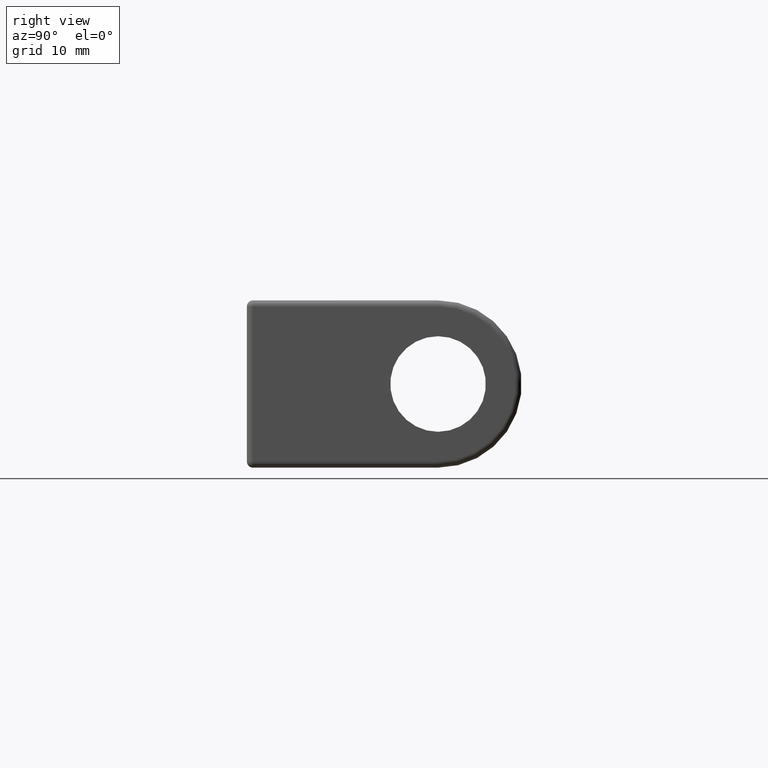
[diagram: clean part render]
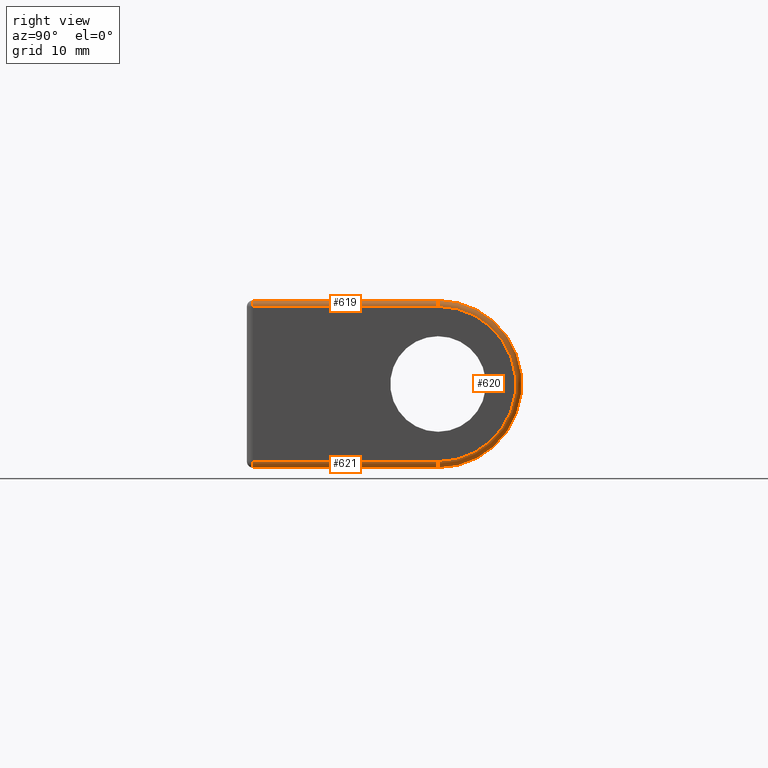
[diagram: same view with one multi-face feature highlighted, each face labeled with its STEP entity id]
A machine part, right view. The highlighted faces form ONE feature: a constant-radius fillet chain: 3 tangent blend faces with common blend radius 0.5 mm. The faces share edges in the B-rep.
Their STEP definitions:
[1] entity #620 (Torus):
#53=TOROIDAL_SURFACE('',#695,6.5,0.5);
#74=FACE_OUTER_BOUND('',#121,.T.);
#121=EDGE_LOOP('',(#492,#493,#494,#495));
#175=CIRCLE('',#668,7.);
#191=CIRCLE('',#694,0.499999999999998);
#192=CIRCLE('',#696,0.500000000000003);
#193=CIRCLE('',#697,6.5);
#295=VERTEX_POINT('',#1009);
#296=VERTEX_POINT('',#1011);
#313=VERTEX_POINT('',#1065);
#314=VERTEX_POINT('',#1069);
#356=EDGE_CURVE('',#296,#295,#175,.T.);
#383=EDGE_CURVE('',#313,#295,#191,.T.);
#385=EDGE_CURVE('',#314,#296,#192,.T.);
#386=EDGE_CURVE('',#313,#314,#193,.T.);
#492=ORIENTED_EDGE('',*,*,#385,.T.);
#493=ORIENTED_EDGE('',*,*,#356,.T.);
#494=ORIENTED_EDGE('',*,*,#383,.F.);
#495=ORIENTED_EDGE('',*,*,#386,.T.);
#620=ADVANCED_FACE('',(#74),#53,.T.);
#668=AXIS2_PLACEMENT_3D('',#1012,#796,#797);
#694=AXIS2_PLACEMENT_3D('',#1066,#859,#860);
#695=AXIS2_PLACEMENT_3D('',#1068,#862,#863);
#696=AXIS2_PLACEMENT_3D('',#1070,#864,#865);
#697=AXIS2_PLACEMENT_3D('',#1071,#866,#867);
#796=DIRECTION('center_axis',(1.,-1.93082265152201E-16,0.));
#797=DIRECTION('ref_axis',(1.88341405963196E-16,1.,6.12323399573677E-17));
#859=DIRECTION('center_axis',(0.,-1.,-1.66533453693773E-15));
#860=DIRECTION('ref_axis',(1.,0.,0.));
#862=DIRECTION('center_axis',(1.,-1.93082265152201E-16,0.));
#863=DIRECTION('ref_axis',(0.,0.,-1.));
#864=DIRECTION('center_axis',(2.77555756156288E-16,1.,1.38777878078144E-15));
#865=DIRECTION('ref_axis',(1.,-2.77555756156288E-16,0.));
#866=DIRECTION('center_axis',(-1.,1.93082265152201E-16,0.));
#867=DIRECTION('ref_axis',(1.93082265152201E-16,1.,6.12323399573677E-17));
#1009=CARTESIAN_POINT('',(27.,0.750000000000016,7.));
#1011=CARTESIAN_POINT('',(27.,0.750000000000016,-7.));
#1012=CARTESIAN_POINT('Origin',(27.,0.750000000000016,0.));
#1065=CARTESIAN_POINT('',(27.5,0.750000000000017,6.5));
#1066=CARTESIAN_POINT('Origin',(27.,0.750000000000017,6.5));
#1068=CARTESIAN_POINT('Origin',(27.,0.750000000000016,0.));
#1069=CARTESIAN_POINT('',(27.5,0.750000000000016,-6.5));
#1070=CARTESIAN_POINT('Origin',(27.,0.750000000000016,-6.5));
#1071=CARTESIAN_POINT('Origin',(27.5,0.750000000000016,0.));
[2] entity #621 (Cylinder):
#75=FACE_OUTER_BOUND('',#122,.T.);
#122=EDGE_LOOP('',(#496,#497,#498,#499));
#185=CIRCLE('',#685,0.499999999999998);
#192=CIRCLE('',#696,0.500000000000003);
#236=LINE('',#1073,#270);
#237=LINE('',#1074,#271);
#270=VECTOR('',#870,15.5);
#271=VECTOR('',#871,15.5);
#296=VERTEX_POINT('',#1011);
#308=VERTEX_POINT('',#1049);
#309=VERTEX_POINT('',#1050);
#314=VERTEX_POINT('',#1069);
#375=EDGE_CURVE('',#308,#309,#185,.F.);
#385=EDGE_CURVE('',#314,#296,#192,.T.);
#387=EDGE_CURVE('',#309,#296,#236,.T.);
#388=EDGE_CURVE('',#314,#308,#237,.T.);
#496=ORIENTED_EDGE('',*,*,#375,.T.);
#497=ORIENTED_EDGE('',*,*,#387,.T.);
#498=ORIENTED_EDGE('',*,*,#385,.F.);
#499=ORIENTED_EDGE('',*,*,#388,.T.);
#587=CYLINDRICAL_SURFACE('',#698,0.5);
#621=ADVANCED_FACE('',(#75),#587,.T.);
#685=AXIS2_PLACEMENT_3D('',#1051,#839,#840);
#696=AXIS2_PLACEMENT_3D('',#1070,#864,#865);
#698=AXIS2_PLACEMENT_3D('',#1072,#868,#869);
#839=DIRECTION('center_axis',(0.,-1.,-4.44089209850062E-15));
#840=DIRECTION('ref_axis',(1.,0.,0.));
#864=DIRECTION('center_axis',(2.77555756156288E-16,1.,1.38777878078144E-15));
#865=DIRECTION('ref_axis',(1.,-2.77555756156288E-16,0.));
#868=DIRECTION('center_axis',(-1.93082265152201E-16,-1.,0.));
#869=DIRECTION('ref_axis',(0.707106781186546,0.,-0.707106781186549));
#870=DIRECTION('',(1.93082265152201E-16,1.,0.));
#871=DIRECTION('',(-1.93082265152201E-16,-1.,0.));
#1011=CARTESIAN_POINT('',(27.,0.750000000000016,-7.));
#1049=CARTESIAN_POINT('',(27.5,-14.75,-6.5));
#1050=CARTESIAN_POINT('',(27.,-14.75,-7.));
#1051=CARTESIAN_POINT('Origin',(27.,-14.75,-6.5));
#1069=CARTESIAN_POINT('',(27.5,0.750000000000016,-6.5));
#1070=CARTESIAN_POINT('Origin',(27.,0.750000000000016,-6.5));
#1072=CARTESIAN_POINT('Origin',(27.,-10.7640374331551,-6.5));
#1073=CARTESIAN_POINT('',(27.,-10.7640374331551,-7.));
#1074=CARTESIAN_POINT('',(27.5,-10.7640374331551,-6.5));
[3] entity #619 (Cylinder):
#73=FACE_OUTER_BOUND('',#120,.T.);
#120=EDGE_LOOP('',(#488,#489,#490,#491));
#190=CIRCLE('',#691,0.5);
#191=CIRCLE('',#694,0.499999999999998);
#228=LINE('',#1021,#262);
#235=LINE('',#1067,#269);
#262=VECTOR('',#804,15.5);
#269=VECTOR('',#861,15.5);
#295=VERTEX_POINT('',#1009);
#299=VERTEX_POINT('',#1019);
#312=VERTEX_POINT('',#1058);
#313=VERTEX_POINT('',#1065);
#361=EDGE_CURVE('',#295,#299,#228,.T.);
#380=EDGE_CURVE('',#299,#312,#190,.F.);
#383=EDGE_CURVE('',#313,#295,#191,.T.);
#384=EDGE_CURVE('',#312,#313,#235,.T.);
#488=ORIENTED_EDGE('',*,*,#383,.T.);
#489=ORIENTED_EDGE('',*,*,#361,.T.);
#490=ORIENTED_EDGE('',*,*,#380,.T.);
#491=ORIENTED_EDGE('',*,*,#384,.T.);
#586=CYLINDRICAL_SURFACE('',#693,0.5);
#619=ADVANCED_FACE('',(#73),#586,.T.);
#691=AXIS2_PLACEMENT_3D('',#1060,#851,#852);
#693=AXIS2_PLACEMENT_3D('',#1064,#857,#858);
#694=AXIS2_PLACEMENT_3D('',#1066,#859,#860);
#804=DIRECTION('',(-1.93082265152201E-16,-1.,0.));
#851=DIRECTION('center_axis',(-4.44089209850064E-15,-1.,0.));
#852=DIRECTION('ref_axis',(0.,0.,1.));
#857=DIRECTION('center_axis',(1.93082265152201E-16,1.,0.));
#858=DIRECTION('ref_axis',(0.707106781186546,0.,0.707106781186549));
#859=DIRECTION('center_axis',(0.,-1.,-1.66533453693773E-15));
#860=DIRECTION('ref_axis',(1.,0.,0.));
#861=DIRECTION('',(1.93082265152201E-16,1.,0.));
#1009=CARTESIAN_POINT('',(27.,0.750000000000016,7.));
#1019=CARTESIAN_POINT('',(27.,-14.75,7.));
#1021=CARTESIAN_POINT('',(27.,-10.7640374331551,7.));
#1058=CARTESIAN_POINT('',(27.5,-14.75,6.5));
#1060=CARTESIAN_POINT('Origin',(27.,-14.75,6.5));
#1064=CARTESIAN_POINT('Origin',(27.,-10.7640374331551,6.5));
#1065=CARTESIAN_POINT('',(27.5,0.750000000000017,6.5));
#1066=CARTESIAN_POINT('Origin',(27.,0.750000000000017,6.5));
#1067=CARTESIAN_POINT('',(27.5,-10.7640374331551,6.5));